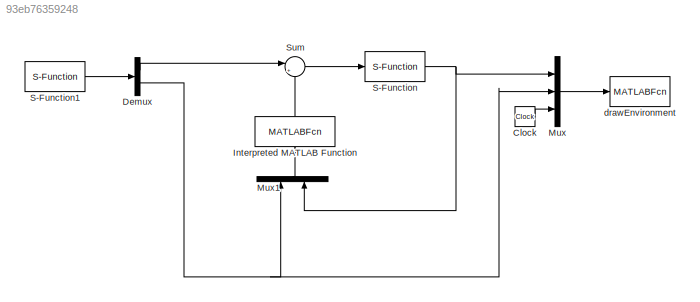
MODEL slx_93eb76359248
KIND model
CONFIG InitFcn = param
BLOCK [Clock] Clock
BLOCK [Demux] Demux
  DisplayOption = bar
  Outputs = [2;4]
  Ports = [1, 2]
BLOCK [MATLABFcn] Interpreted MATLAB Function
  MATLABFcn = ctrl(u,P)
  OutputDimensions = 2
  Ports = [1, 1]
  SampleTime = .01
BLOCK [Mux] Mux
  DisplayOption = bar
  Inputs = 3
  Ports = [3, 1]
BLOCK [Mux] Mux1
  DisplayOption = bar
  Inputs = 2
  Ports = [2, 1]
BLOCK [S-Function] S-Function
  EnableBusSupport = off
  FunctionName = robot
  Parameters = P
  Ports = [1, 1]
BLOCK [S-Function] S-Function1
  EnableBusSupport = off
  FunctionName = trajectory
  Parameters = P
  Ports = [0, 1]
BLOCK [Sum] Sum
  IconShape = round
  InputSameDT = off
  Inputs = |++
  OutDataTypeStr = Inherit: Inherit via internal rule
  Ports = [2, 1]
  SaturateOnIntegerOverflow = off
BLOCK [MATLABFcn] drawEnvironment
  MATLABFcn = drawEnvironment(u,P)
  OutputDimensions = 0
  Ports = [1]
  SampleTime = .1
LINE Clock:1 -> Mux:3
LINE Demux:1 -> Sum:1
NET Demux:2 -> Mux1:1, Mux:2
LINE Interpreted MATLAB Function:1 -> Sum:2
LINE Mux1:1 -> Interpreted MATLAB Function:1
LINE Mux:1 -> drawEnvironment:1
LINE S-Function1:1 -> Demux:1
NET S-Function:1 -> Mux1:2, Mux:1
LINE Sum:1 -> S-Function:1
note: NET lines group one-source signal fan-out (src -> all destinations, sorted); 1:1 wires keep LINE
